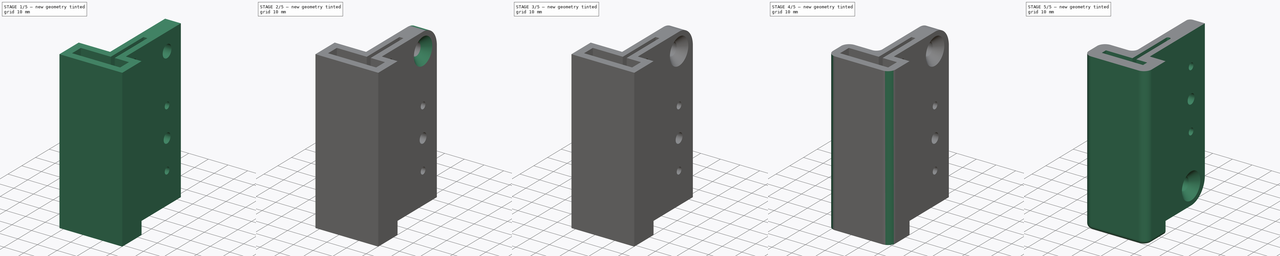
[diagram: build sequence overview — one tinted view per stage of 5, left to right]
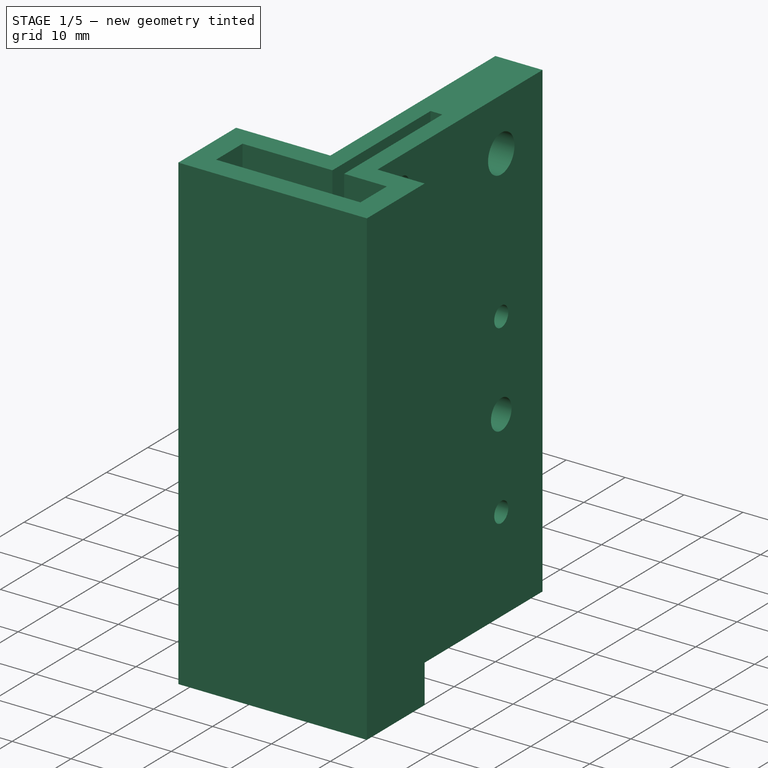
[diagram: stage 1 of 5 — iso view after this stage's code; geometry added in this stage tinted green]
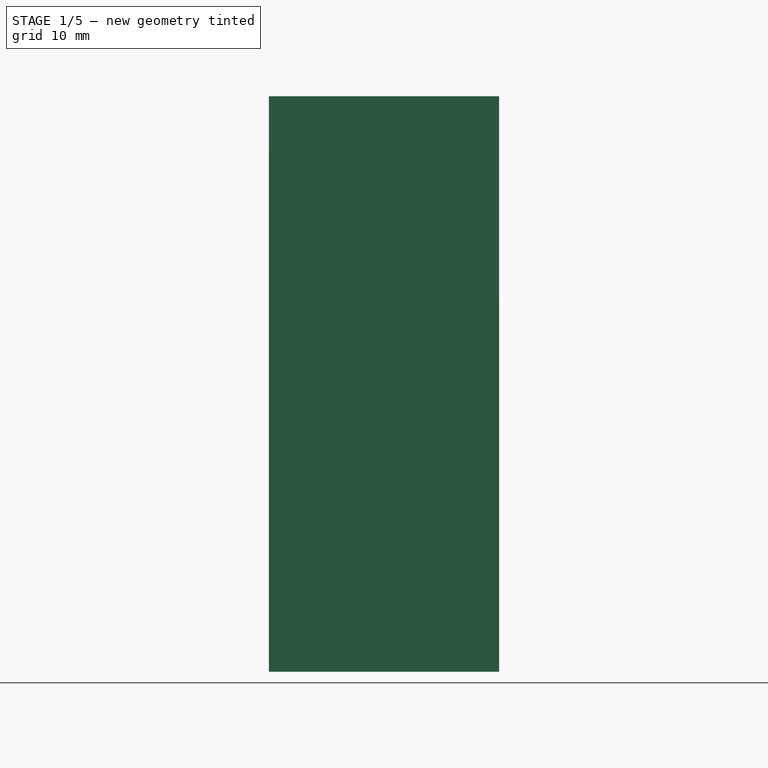
[diagram: stage 1 of 5 — front view after this stage's code; geometry added in this stage tinted green]
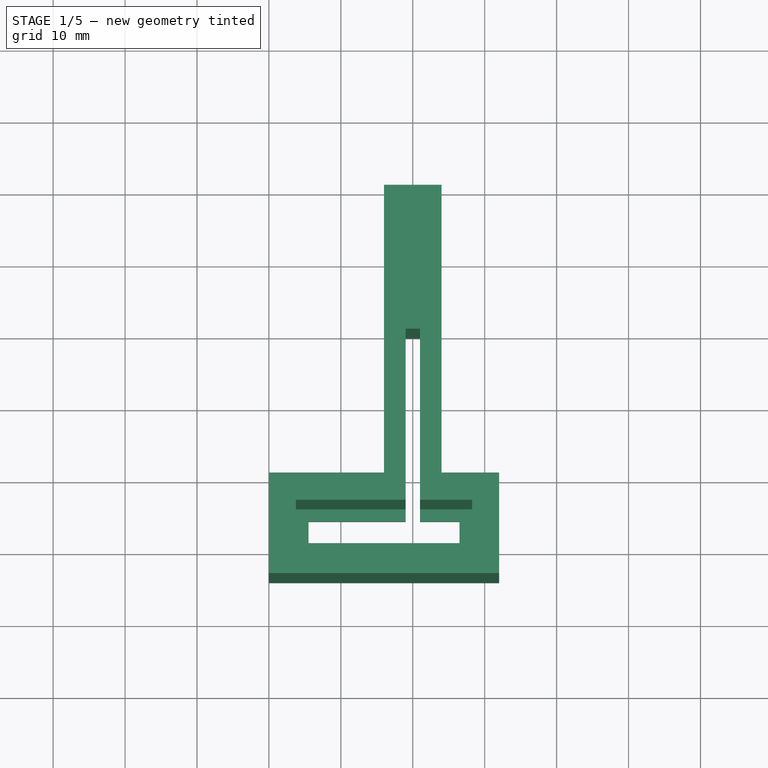
[diagram: stage 1 of 5 — top view after this stage's code; geometry added in this stage tinted green]
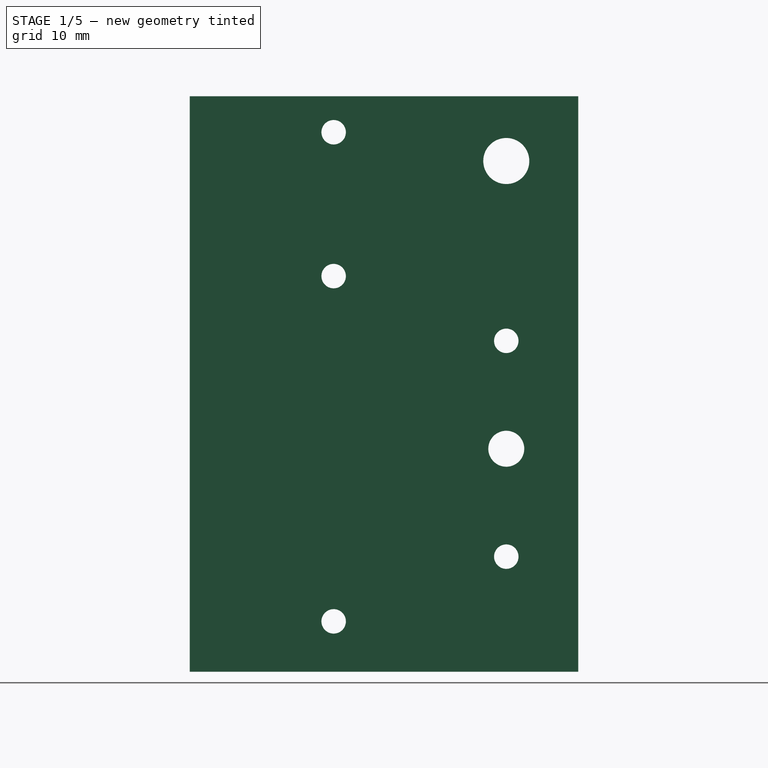
[diagram: stage 1 of 5 — right view after this stage's code; geometry added in this stage tinted green]
FCSTD DOCUMENT  (FreeCAD 0.16R6705 (Git))
Label: LowerKnee2
License: All rights reserved
LicenseURL: http://en.wikipedia.org/wiki/All_rights_reserved
objects: PartDesign::Fillet×8, PartDesign::Chamfer×6, Sketcher::SketchObject×4, PartDesign::Pocket×3, PartDesign::Pad×1, Part::Mirroring×1
note: 27 computed .brp shape members not serialized (recipe doc carries the construction recipe); baked Part::Feature solids carry a one-line shape summary decoded from their .brp

FEATURE [Sketcher::SketchObject] Sketch
  sketch-geometry (22):
    g0: LineSegment [constr] StartX=1 StartY=-3.9 StartZ=0 EndX=1 EndY=14 EndZ=0
    g1: LineSegment [constr] StartX=1 StartY=14 StartZ=0 EndX=-1 EndY=14 EndZ=0
    g2: LineSegment [constr] StartX=-1 StartY=14 StartZ=0 EndX=-1 EndY=-3.9 EndZ=0
    g3: LineSegment [constr] StartX=-1 StartY=-3.9 StartZ=0 EndX=-16.2 EndY=-3.9 EndZ=0
    g4: LineSegment [constr] StartX=-16.2 StartY=-3.9 StartZ=0 EndX=-16.2 EndY=-10.1 EndZ=0
    g5: LineSegment [constr] StartX=-16.2 StartY=-10.1 StartZ=0 EndX=8.2 EndY=-10.1 EndZ=0
    g6: LineSegment [constr] StartX=8.2 StartY=-10.1 StartZ=0 EndX=8.2 EndY=-3.9 EndZ=0
    g7: LineSegment [constr] StartX=8.2 StartY=-3.9 StartZ=0 EndX=1 EndY=-3.9 EndZ=0
    g8: LineSegment StartX=-4 StartY=0 StartZ=0 EndX=-4 EndY=40 EndZ=0
    g9: LineSegment StartX=4 StartY=18 StartZ=0 EndX=4 EndY=0 EndZ=0
    g10: LineSegment StartX=4 StartY=0 StartZ=0 EndX=12 EndY=0 EndZ=0
    g11: LineSegment StartX=12 StartY=0 StartZ=0 EndX=12 EndY=-14 EndZ=0
    g12: LineSegment StartX=12 StartY=-14 StartZ=0 EndX=-20 EndY=-14 EndZ=0
    g13: LineSegment StartX=-20 StartY=-14 StartZ=0 EndX=-20 EndY=0 EndZ=0
    g14: LineSegment StartX=-20 StartY=0 StartZ=0 EndX=-4 EndY=0 EndZ=0
    g15: LineSegment StartX=4 StartY=18 StartZ=0 EndX=4 EndY=40 EndZ=0
    g16: LineSegment StartX=4 StartY=40 StartZ=0 EndX=-4 EndY=40 EndZ=0
    g17: LineSegment [constr] StartX=-1 StartY=-3.9 StartZ=0 EndX=1 EndY=-3.9 EndZ=0
    g18: LineSegment [constr] StartX=4 StartY=0 StartZ=0 EndX=-4 EndY=0 EndZ=0
    g19: GeomPoint [constr] X=-4 Y=-7 Z=0
    g20: LineSegment [constr] StartX=-4 StartY=30 StartZ=0 EndX=4 EndY=30 EndZ=0
    g21: LineSegment [constr] StartX=-4 StartY=6 StartZ=0 EndX=4 EndY=6 EndZ=0
  constraints (67):
    c: Vertical(g0)
    c: Coincident(g0,g1)
    c: Horizontal(g1)
    c: Coincident(g1,g2)
    c: Vertical(g2)
    c: Coincident(g2,g3)
    c: Coincident(g3,g4)
    c: Vertical(g4)
    c: Coincident(g4,g5)
    c: Horizontal(g5)
    c: Coincident(g5,g6)
    c: Vertical(g6)
    c: Coincident(g6,g7)
    c: Coincident(g7,g0)
    c: Horizontal(g7)
    c: Horizontal(g3)
    c: Vertical(g8)
    c: Vertical(g9)
    c: Coincident(g9,g10)
    c: Horizontal(g10)
    c: Coincident(g10,g11)
    c: Vertical(g11)
    c: Coincident(g11,g12)
    c: Horizontal(g12)
    c: Coincident(g12,g13)
    c: Vertical(g13)
    c: Coincident(g13,g14)
    c: Horizontal(g14)
    c: Coincident(g8,g14)
    c: Vertical(g15)
    c: Coincident(g15,g16)
    c: Horizontal(g16)
    c: Coincident(g16,g8)
    c: Coincident(g17,g0)
    c: Horizontal(g17)
    c: Coincident(g18,g9)
    c: Coincident(g18,g8)
    c: Horizontal(g18)
    c: DistanceY(g11,g10) = 14
    c: DistanceX(g4,g5) = 24.4
    c: Coincident(g2,g17)
    c: Symmetric(g4,g6,g19)
    c: Symmetric(g12,g10,g19)
    c: DistanceY(g4,g3) = 6.2
    c: DistanceX(g2,g0) = 2
    c: DistanceX(g12,g11) = 32
    c: Symmetric(g2,g0,g-2)
    c: Symmetric(g8,g9,g-2)
    c: DistanceY(g0,g9) = 4
    c: DistanceX(g0,g9) = 3
    c: PointOnObject(g20,g8)
    c: Horizontal(g20)
    c: DistanceY(g8,g20) = 30
    c: PointOnObject(g13,g-1)
    c: DistanceY(g20,g8) = 10
    c: PointOnObject(g21,g8)
    c: Horizontal(g21)
    c: DistanceY(g8,g21) = 6
    c: DistanceY(g21,g1) = 8
    c: DistanceX(g8,g15) = 8
    c: PointOnObject(g20,g15)
    c: DistanceX(g13,g8) = 16
    c: PointOnObject(g21,g9)
    c: DistanceY(g9,g20) = 12
    c: DistanceX(g8,g9) = 8
    c: Coincident(g15,g9)
    c: DistanceX(g9,g10) = 8
FEATURE [PartDesign::Pad] Pad
  Length = 80
  Length2 = 100
  Sketch = -> Sketch
  Type = 0
FEATURE [Sketcher::SketchObject] Sketch001  label="RodHole"
  Placement = pos=(0,0,80) rot=(0,0,1;0rad)
  Support = -> Pad [Face9]
  sketch-geometry (22):
    g0: LineSegment StartX=1 StartY=-3.8 StartZ=0 EndX=1 EndY=20 EndZ=0
    g1: LineSegment StartX=1 StartY=20 StartZ=0 EndX=-1 EndY=20 EndZ=0
    g2: LineSegment StartX=-1 StartY=20 StartZ=0 EndX=-1 EndY=-3.8 EndZ=0
    g3: LineSegment StartX=-1 StartY=-3.8 StartZ=0 EndX=-16.25 EndY=-3.8 EndZ=0
    g4: LineSegment StartX=-16.25 StartY=-3.8 StartZ=0 EndX=-16.25 EndY=-10.2 EndZ=0
    g5: LineSegment StartX=-16.25 StartY=-10.2 StartZ=0 EndX=8.25 EndY=-10.2 EndZ=0
    g6: LineSegment StartX=8.25 StartY=-10.2 StartZ=0 EndX=8.25 EndY=-3.8 EndZ=0
    g7: LineSegment StartX=8.25 StartY=-3.8 StartZ=0 EndX=1 EndY=-3.8 EndZ=0
    g8: LineSegment [constr] StartX=-4 StartY=0 StartZ=0 EndX=-4 EndY=40 EndZ=0
    g9: LineSegment [constr] StartX=4 StartY=24 StartZ=0 EndX=4 EndY=0 EndZ=0
    g10: LineSegment [constr] StartX=4 StartY=0 StartZ=0 EndX=12 EndY=0 EndZ=0
    g11: LineSegment [constr] StartX=12 StartY=0 StartZ=0 EndX=12 EndY=-14 EndZ=0
    g12: LineSegment [constr] StartX=12 StartY=-14 StartZ=0 EndX=-20 EndY=-14 EndZ=0
    g13: LineSegment [constr] StartX=-20 StartY=-14 StartZ=0 EndX=-20 EndY=0 EndZ=0
    g14: LineSegment [constr] StartX=-20 StartY=0 StartZ=0 EndX=-4 EndY=0 EndZ=0
    g15: LineSegment [constr] StartX=4 StartY=24 StartZ=0 EndX=4 EndY=40 EndZ=0
    g16: LineSegment [constr] StartX=4 StartY=40 StartZ=0 EndX=-4 EndY=40 EndZ=0
    g17: LineSegment [constr] StartX=-1 StartY=-3.8 StartZ=0 EndX=1 EndY=-3.8 EndZ=0
    g18: LineSegment [constr] StartX=4 StartY=0 StartZ=0 EndX=-4 EndY=0 EndZ=0
    g19: GeomPoint [constr] X=-4 Y=-7 Z=0
    g20: LineSegment [constr] StartX=-4 StartY=30 StartZ=0 EndX=4 EndY=30 EndZ=0
    g21: LineSegment [constr] StartX=-4 StartY=6 StartZ=0 EndX=4 EndY=6 EndZ=0
  constraints (67):
    c: Vertical(g0)
    c: Coincident(g0,g1)
    c: Horizontal(g1)
    c: Coincident(g1,g2)
    c: Vertical(g2)
    c: Coincident(g2,g3)
    c: Coincident(g3,g4)
    c: Vertical(g4)
    c: Coincident(g4,g5)
    c: Horizontal(g5)
    c: Coincident(g5,g6)
    c: Vertical(g6)
    c: Coincident(g6,g7)
    c: Coincident(g7,g0)
    c: Horizontal(g7)
    c: Horizontal(g3)
    c: Vertical(g8)
    c: Vertical(g9)
    c: Coincident(g9,g10)
    c: Horizontal(g10)
    c: Coincident(g10,g11)
    c: Vertical(g11)
    c: Coincident(g11,g12)
    c: Horizontal(g12)
    c: Coincident(g12,g13)
    c: Vertical(g13)
    c: Coincident(g13,g14)
    c: Horizontal(g14)
    c: Coincident(g8,g14)
    c: Vertical(g15)
    c: Coincident(g15,g16)
    c: Horizontal(g16)
    c: Coincident(g16,g8)
    c: Coincident(g17,g0)
    c: Horizontal(g17)
    c: Coincident(g18,g9)
    c: Coincident(g18,g8)
    c: Horizontal(g18)
    c: DistanceY(g11,g10) = 14
    c: DistanceX(g4,g5) = 24.5
    c: Coincident(g2,g17)
    c: Symmetric(g4,g6,g19)
    c: Symmetric(g12,g10,g19)
    c: DistanceY(g4,g3) = 6.4
    c: DistanceX(g2,g0) = 2
    c: DistanceX(g12,g11) = 32
    c: Symmetric(g2,g0,g-2)
    c: Symmetric(g8,g9,g-2)
    c: DistanceY(g0,g9) = 4
    c: DistanceX(g0,g9) = 3
    c: PointOnObject(g20,g8)
    c: Horizontal(g20)
    c: DistanceY(g8,g20) = 30
    c: PointOnObject(g13,g-1)
    c: DistanceY(g20,g8) = 10
    c: PointOnObject(g21,g8)
    c: Horizontal(g21)
    c: DistanceY(g8,g21) = 6
    c: DistanceY(g21,g1) = 14
    c: DistanceX(g8,g15) = 8
    c: PointOnObject(g20,g15)
    c: DistanceY(g19,g-1) = 7
    c: DistanceX(g-1,g19) = -4
    c: DistanceX(g13,g8) = 16
    c: DistanceX(g9,g10) = 8
    c: Coincident(g15,g9)
    c: PointOnObject(g21,g9)
FEATURE [PartDesign::Pocket] Pocket
  Length = 76
  Sketch = -> Sketch001
  Type = 0
FEATURE [Sketcher::SketchObject] Sketch002  label="MountingHoles"
  Placement = pos=(-4,0,0) rot=(0.57735,-0.57735,-0.57735;2.0944rad)
  Support = -> Pocket [Face10]
  sketch-geometry (11):
    g0: LineSegment [constr] StartX=-6 StartY=80 StartZ=0 EndX=-6 EndY=0 EndZ=0
    g1: Circle CenterX=-6 CenterY=7 CenterZ=0 NormalX=0 NormalY=0 NormalZ=1 Radius=1.7
    g2: Circle CenterX=-6 CenterY=55 CenterZ=0 NormalX=0 NormalY=0 NormalZ=1 Radius=1.7
    g3: Circle CenterX=-6 CenterY=75 CenterZ=0 NormalX=0 NormalY=0 NormalZ=1 Radius=1.7
    g4: LineSegment [constr] StartX=0 StartY=31 StartZ=0 EndX=-30 EndY=31 EndZ=0
    g5: LineSegment [constr] StartX=-30 StartY=46 StartZ=0 EndX=-30 EndY=16 EndZ=0
    g6: Circle CenterX=-30 CenterY=46 CenterZ=0 NormalX=0 NormalY=0 NormalZ=1 Radius=1.7
    g7: Circle CenterX=-30 CenterY=16 CenterZ=0 NormalX=0 NormalY=0 NormalZ=1 Radius=1.7
    g8: LineSegment [constr] StartX=-30 StartY=46 StartZ=0 EndX=-30 EndY=71 EndZ=0
    g9: Circle CenterX=-30 CenterY=71 CenterZ=0 NormalX=0 NormalY=0 NormalZ=1 Radius=3.2
    g10: Circle CenterX=-30 CenterY=31 CenterZ=0 NormalX=0 NormalY=0 NormalZ=1 Radius=2.5
  constraints (33):
    c: PointOnObject(g0,g-1)
    c: Vertical(g0)
    c: DistanceX(g0,g-1) = 6
    c: DistanceY(g0,g0) = 80
    c: PointOnObject(g1,g0)
    c: PointOnObject(g2,g0)
    c: PointOnObject(g3,g0)
    c: Radius(g1) = 1.7
    c: Equal(g1,g2)
    c: Equal(g1,g3)
    c: DistanceY(g2,g3) = 20
    c: PointOnObject(g4,g-2)
    c: Horizontal(g4)
    c: Symmetric(g1,g2,g4)
    c: DistanceY(g1,g2) = 48
    c: DistanceY(g-1,g1) = 7
    c: DistanceX(g4,g4) = 30
    c: Vertical(g5)
    c: PointOnObject(g4,g5)
    c: DistanceY(g5,g5) = 30
    c: Symmetric(g5,g5,g4)
    c: Coincident(g6,g5)
    c: Coincident(g7,g5)
    c: Equal(g2,g6)
    c: Equal(g6,g7)
    c: Vertical(g8)
    c: Coincident(g9,g8)
    c: Coincident(g8,g5)
    c: DistanceY(g4,g8) = 40
    c: Radius(g9) = 3.2
    c: Coincident(g10,g4)
    c: Radius(g10) = 2.5
    c: DistanceY(g-1,g8) = 71
FEATURE [PartDesign::Pocket] Pocket001
  Length = 5
  Sketch = -> Sketch002
  Type = 1
FEATURE [Sketcher::SketchObject] Sketch003
  Placement = pos=(0,0,0) rot=(1,0,0;3.14159rad)
  Support = -> Pocket001 [Face4]
  sketch-geometry (10):
    g0: LineSegment StartX=-14.5 StartY=8.5 StartZ=0 EndX=6.5 EndY=8.5 EndZ=0
    g1: LineSegment StartX=6.5 StartY=8.5 StartZ=0 EndX=6.5 EndY=5.5 EndZ=0
    g2: LineSegment StartX=6.5 StartY=5.5 StartZ=0 EndX=1 EndY=5.5 EndZ=0
    g3: LineSegment StartX=-14.5 StartY=5.5 StartZ=0 EndX=-14.5 EndY=8.5 EndZ=0
    g4: GeomPoint [constr] X=-4 Y=7 Z=0
    g5: LineSegment [constr] StartX=-1 StartY=5.5 StartZ=0 EndX=1 EndY=5.5 EndZ=0
    g6: LineSegment StartX=1 StartY=5.5 StartZ=0 EndX=1 EndY=-20 EndZ=0
    g7: LineSegment StartX=1 StartY=-20 StartZ=0 EndX=-1 EndY=-20 EndZ=0
    g8: LineSegment StartX=-1 StartY=-20 StartZ=0 EndX=-1 EndY=5.5 EndZ=0
    g9: LineSegment StartX=-1 StartY=5.5 StartZ=0 EndX=-14.5 EndY=5.5 EndZ=0
  constraints (28):
    c: Coincident(g0,g1)
    c: Coincident(g1,g2)
    c: Coincident(g9,g3)
    c: Coincident(g3,g0)
    c: Horizontal(g0)
    c: Horizontal(g2)
    c: Vertical(g1)
    c: Vertical(g3)
    c: DistanceY(g1,g0) = 3
    c: DistanceX(g0,g0) = 21
    c: DistanceX(g-1,g4) = -4
    c: DistanceY(g-1,g4) = 7
    c: Symmetric(g9,g0,g4)
    c: Coincident(g5,g6)
    c: Coincident(g6,g7)
    c: Coincident(g7,g8)
    c: Coincident(g8,g5)
    c: Horizontal(g5)
    c: Horizontal(g7)
    c: Vertical(g6)
    c: Vertical(g8)
    c: PointOnObject(g2,g6)
    c: PointOnObject(g9,g8)
    c: Tangent(g2,g9)
    c: Coincident(g2,g5)
    c: Symmetric(g6,g7,g-2)
    c: DistanceX(g7,g6) = 2
    c: DistanceY(g6,g-1) = 20
FEATURE [PartDesign::Pocket] Pocket002
  Length = 5
  Sketch = -> Sketch003
  Type = 0
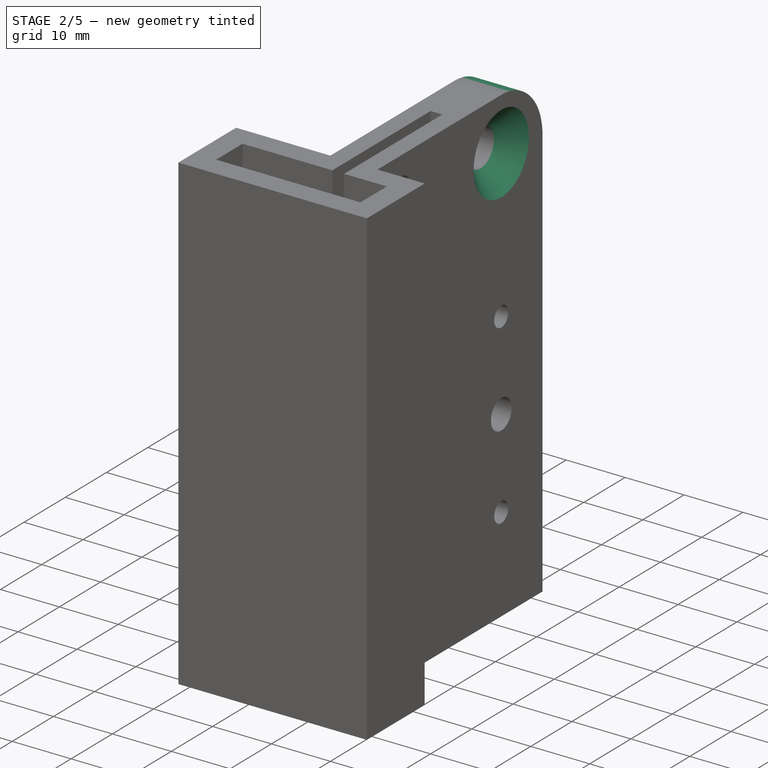
[diagram: stage 2 of 5 — iso view after this stage's code; geometry added in this stage tinted green]
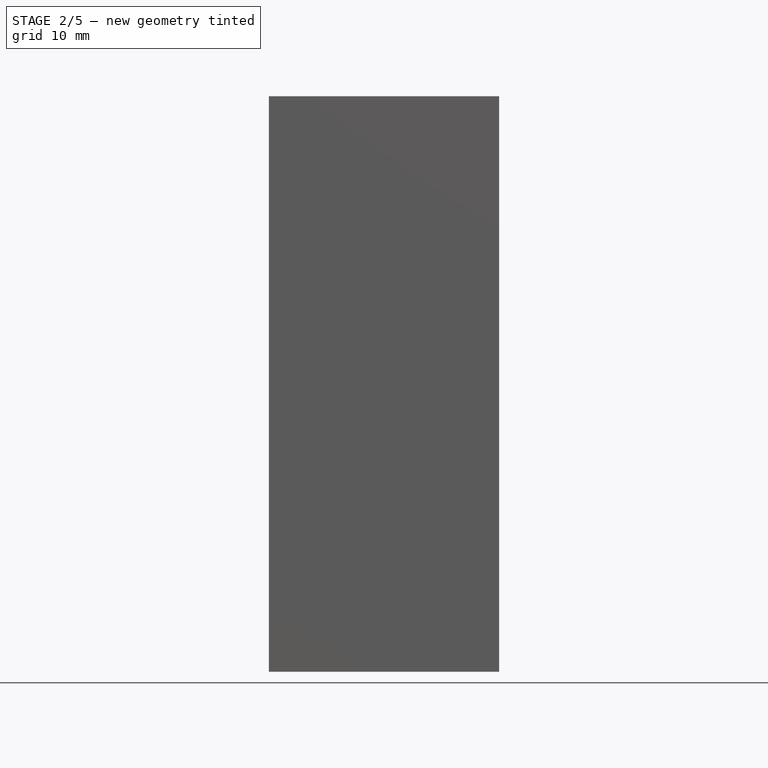
[diagram: stage 2 of 5 — front view after this stage's code; geometry added in this stage tinted green]
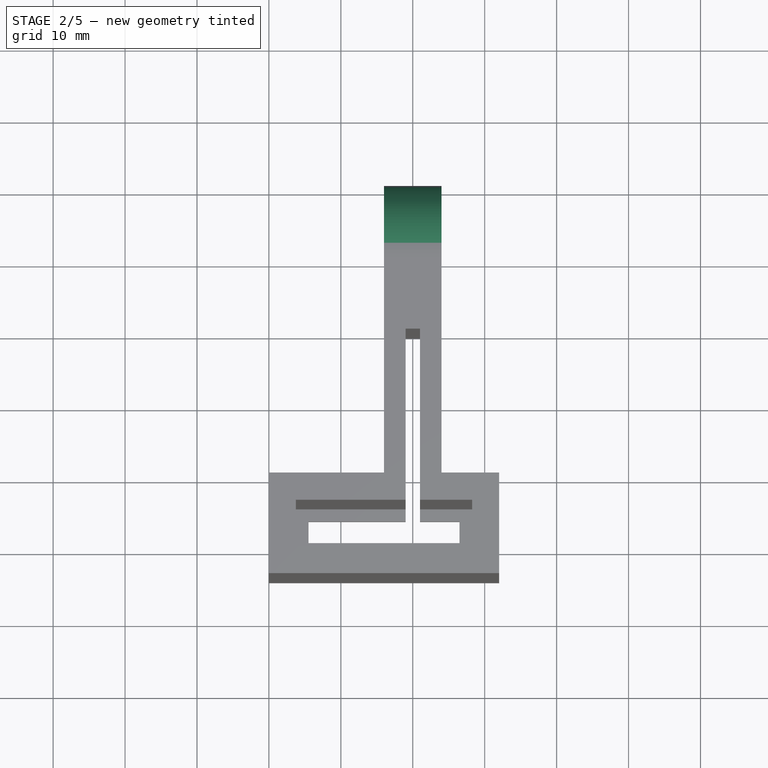
[diagram: stage 2 of 5 — top view after this stage's code; geometry added in this stage tinted green]
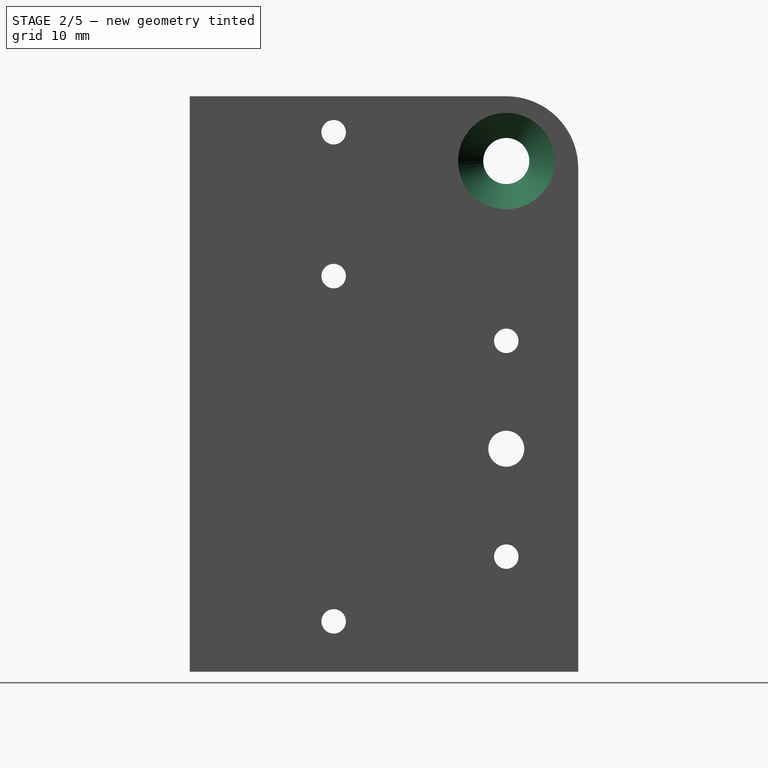
[diagram: stage 2 of 5 — right view after this stage's code; geometry added in this stage tinted green]
FEATURE [PartDesign::Chamfer] Chamfer
  Base = -> Pocket002 [Edge9]
  Size = 3.5
FEATURE [PartDesign::Fillet] Fillet
  Base = -> Chamfer [Edge31]
  Radius = 10
FEATURE [PartDesign::Chamfer] Chamfer001
  Base = -> Fillet [Edge65]
  Size = 1.8
FEATURE [PartDesign::Chamfer] Chamfer002
  Base = -> Chamfer001 [Edge7]
  Size = 1.8
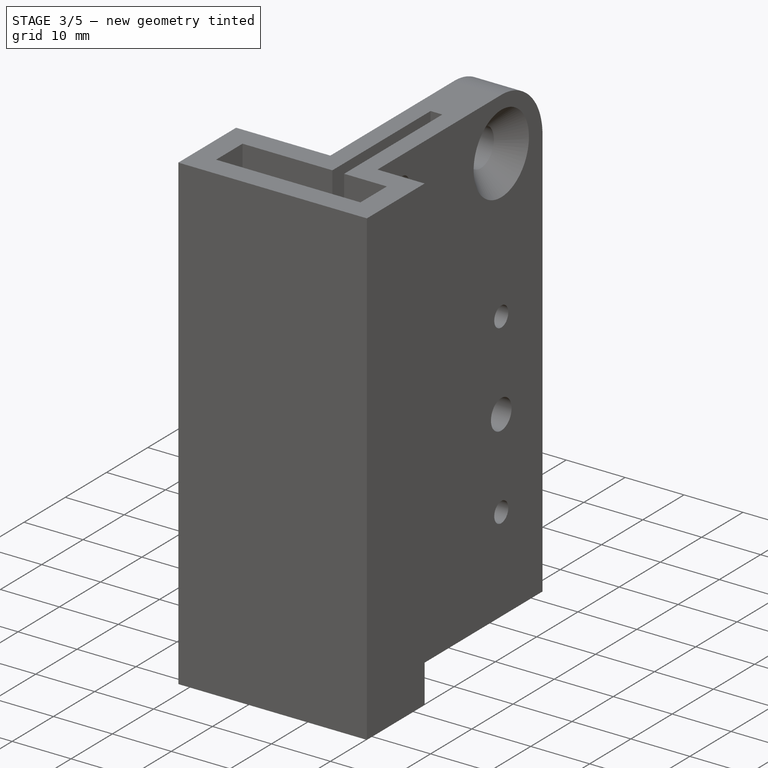
[diagram: stage 3 of 5 — iso view after this stage's code; geometry added in this stage tinted green]
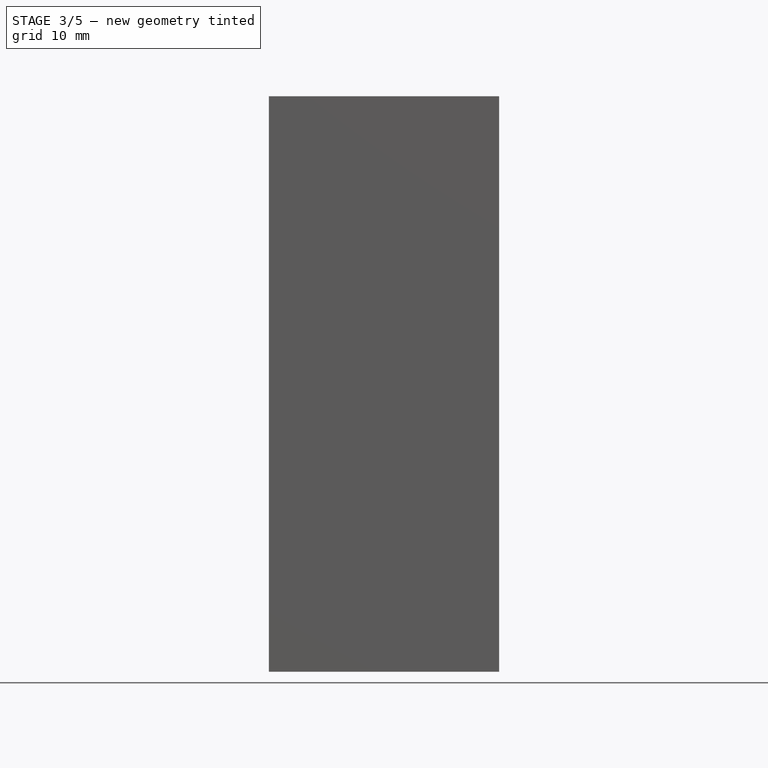
[diagram: stage 3 of 5 — front view after this stage's code; geometry added in this stage tinted green]
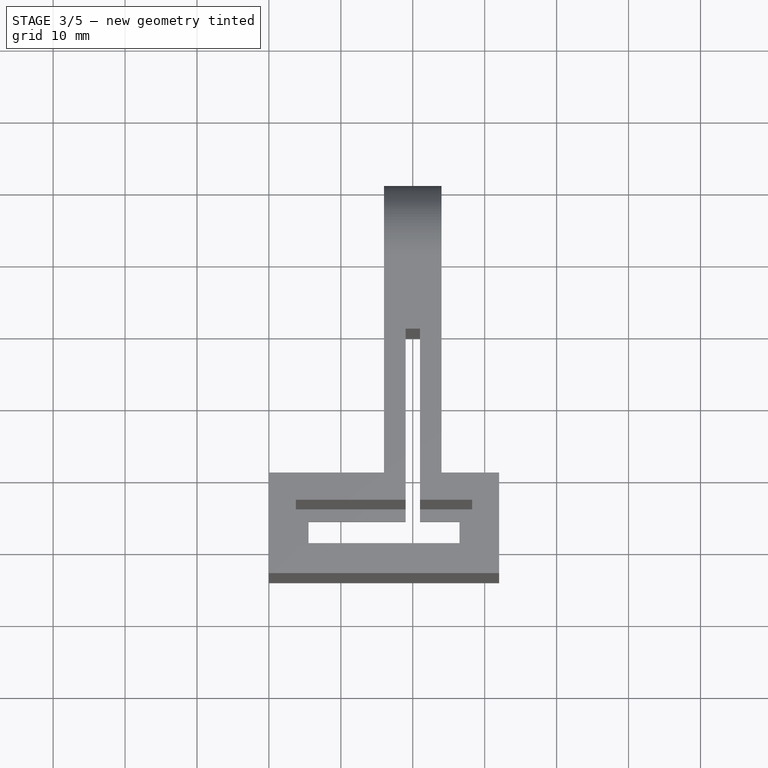
[diagram: stage 3 of 5 — top view after this stage's code; geometry added in this stage tinted green]
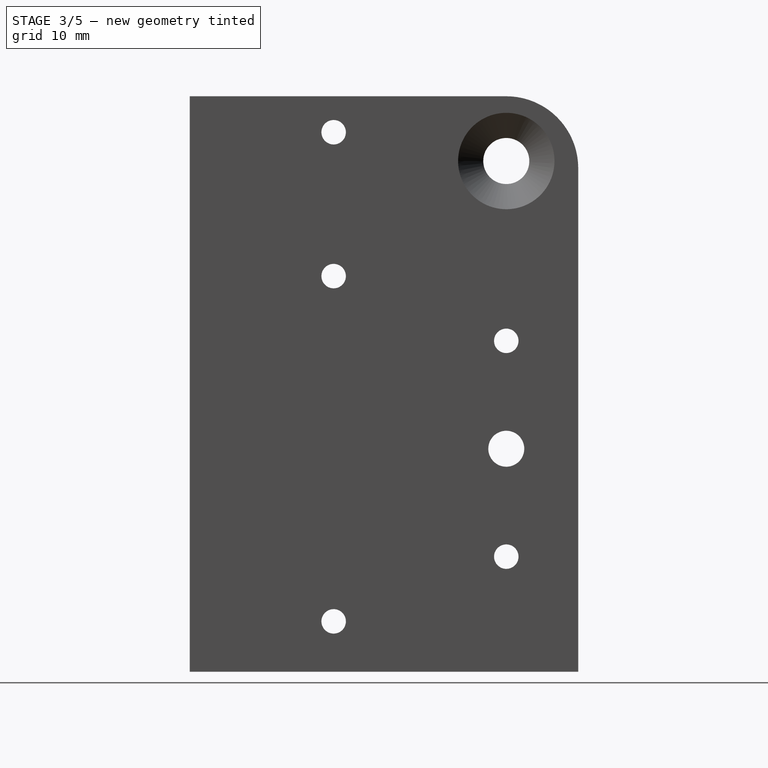
[diagram: stage 3 of 5 — right view after this stage's code; geometry added in this stage tinted green]
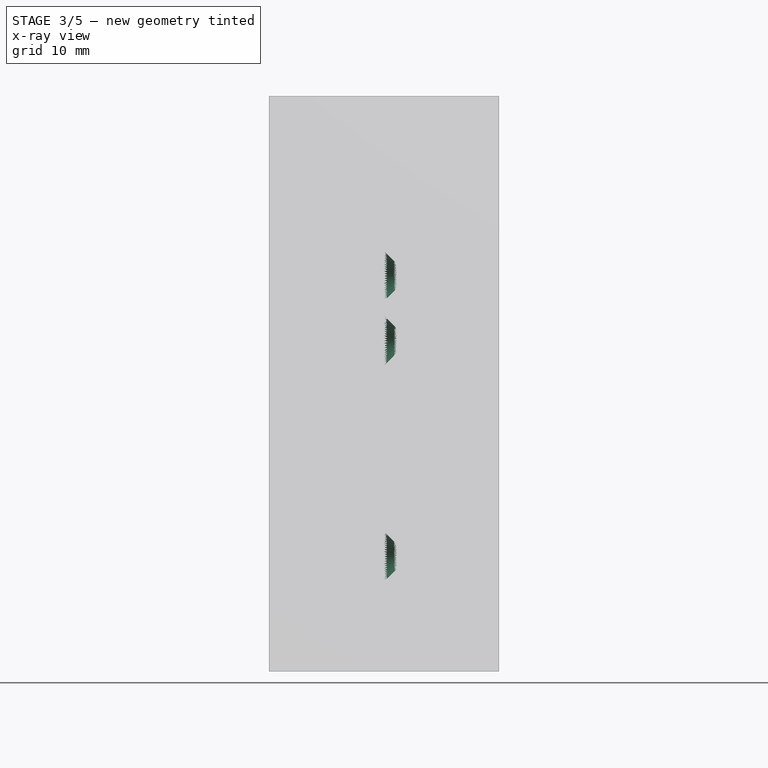
[diagram: stage 3 of 5 — x-ray composite at the front view; earlier geometry ghosted, this stage's added geometry solid]
FEATURE [PartDesign::Chamfer] Chamfer003
  Base = -> Chamfer002 [Edge8]
  Size = 1.8
FEATURE [PartDesign::Chamfer] Chamfer004
  Base = -> Chamfer003 [Edge9]
  Size = 1.8
FEATURE [PartDesign::Chamfer] Chamfer005
  Base = -> Chamfer004 [Edge11]
  Size = 1.8
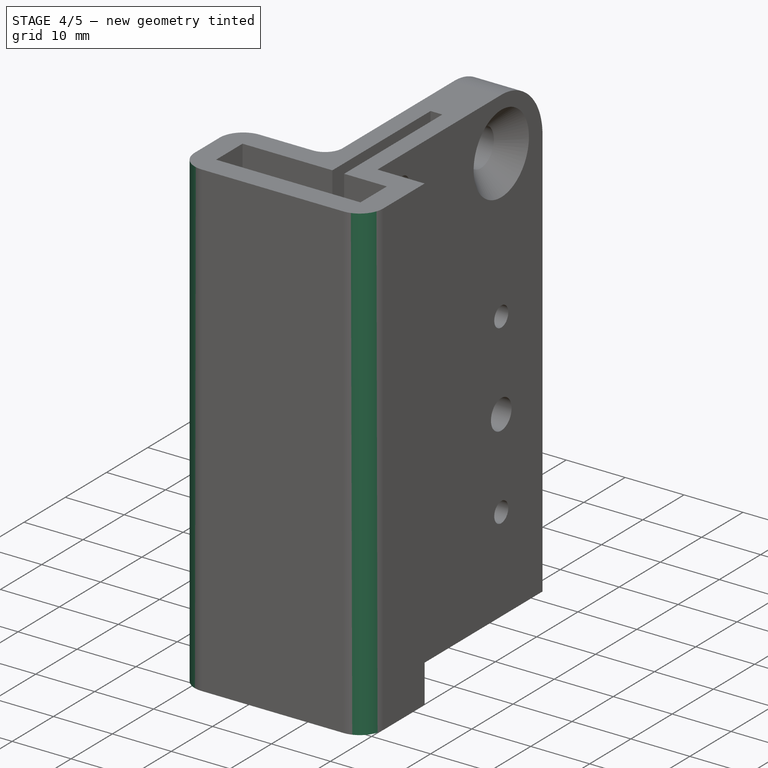
[diagram: stage 4 of 5 — iso view after this stage's code; geometry added in this stage tinted green]
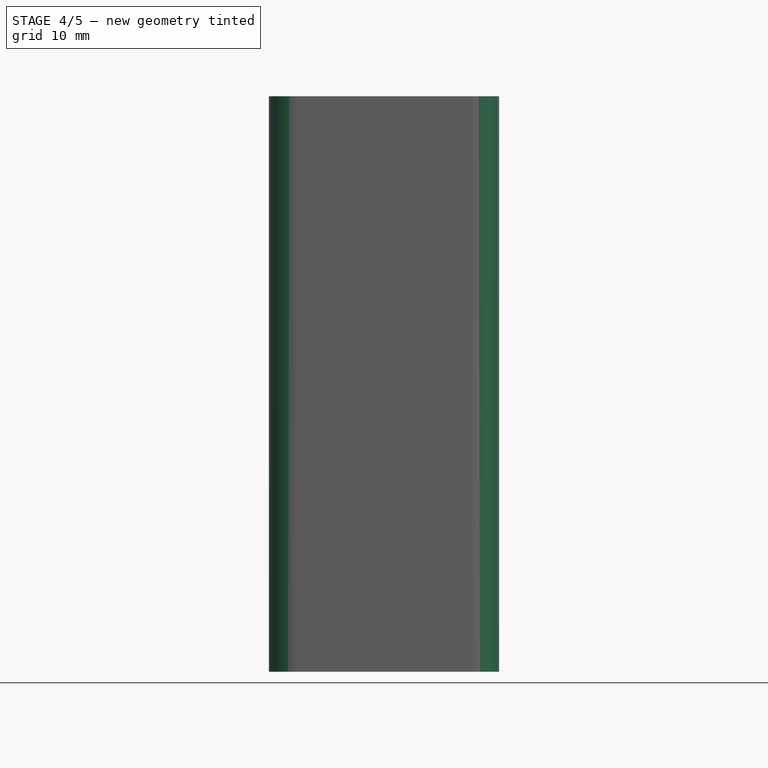
[diagram: stage 4 of 5 — front view after this stage's code; geometry added in this stage tinted green]
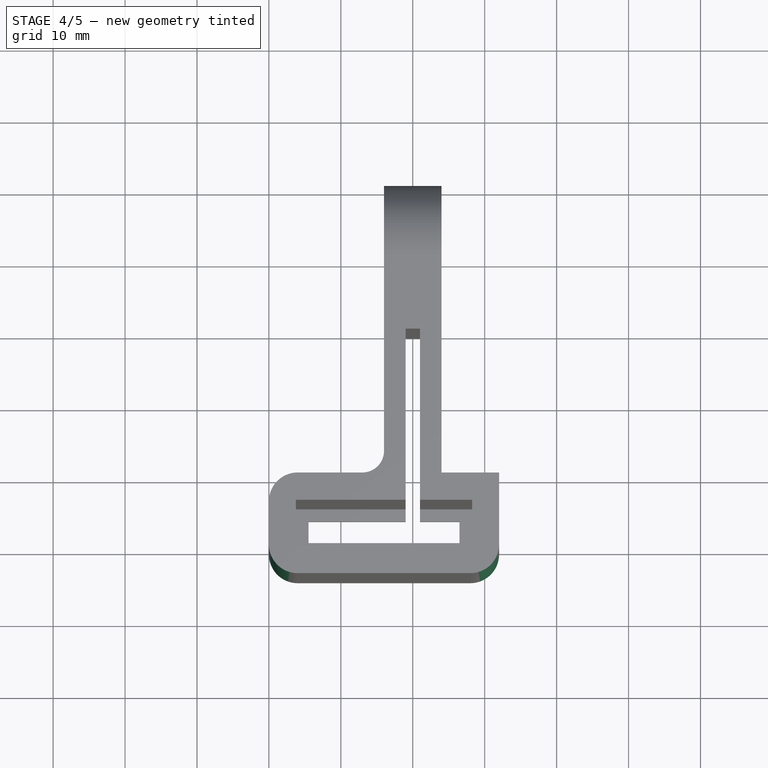
[diagram: stage 4 of 5 — top view after this stage's code; geometry added in this stage tinted green]
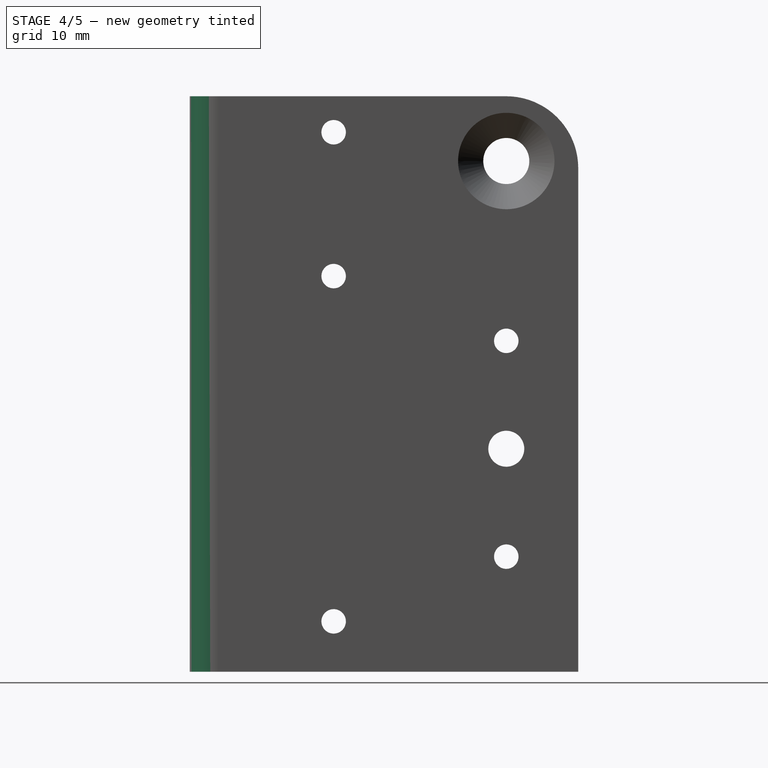
[diagram: stage 4 of 5 — right view after this stage's code; geometry added in this stage tinted green]
FEATURE [PartDesign::Fillet] Fillet001
  Base = -> Chamfer005 [Edge8]
  Radius = 3
FEATURE [PartDesign::Fillet] Fillet002
  Base = -> Fillet001 [Edge86]
  Radius = 4
FEATURE [PartDesign::Fillet] Fillet003
  Base = -> Fillet002 [Edge36]
  Radius = 4
FEATURE [PartDesign::Fillet] Fillet004
  Base = -> Fillet003 [Edge28]
  Radius = 4
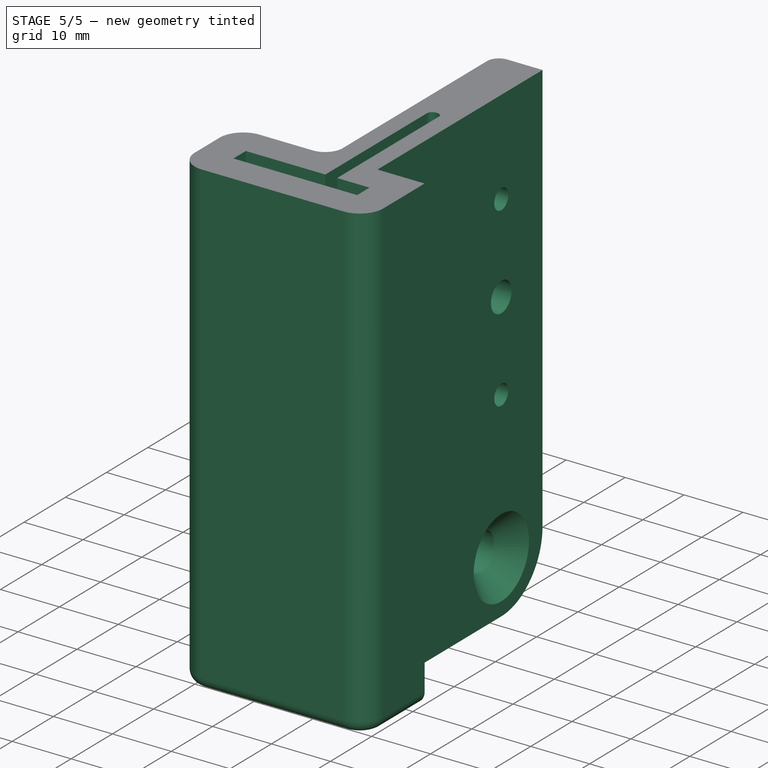
[diagram: stage 5 of 5 — iso view after this stage's code; geometry added in this stage tinted green]
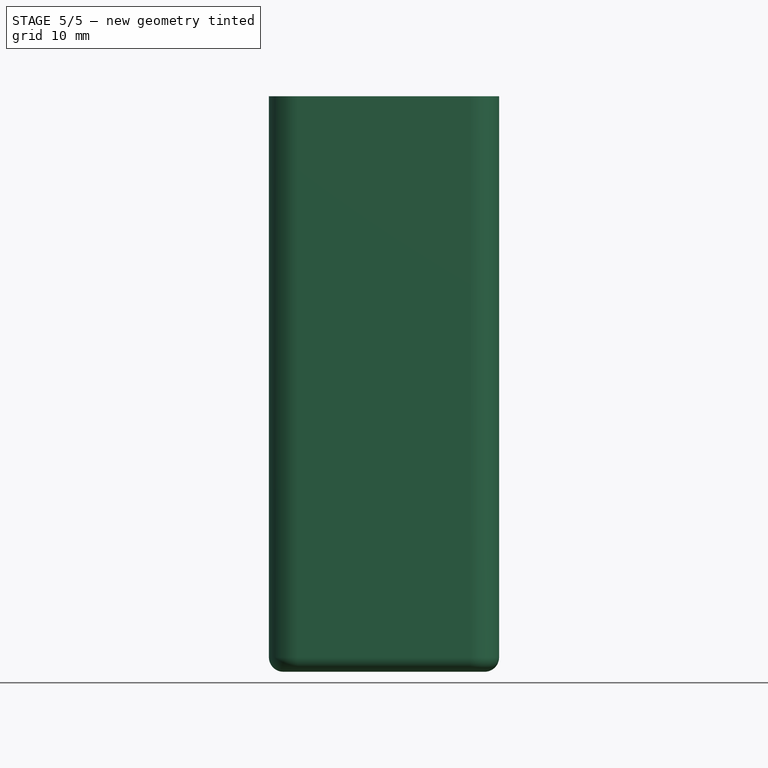
[diagram: stage 5 of 5 — front view after this stage's code; geometry added in this stage tinted green]
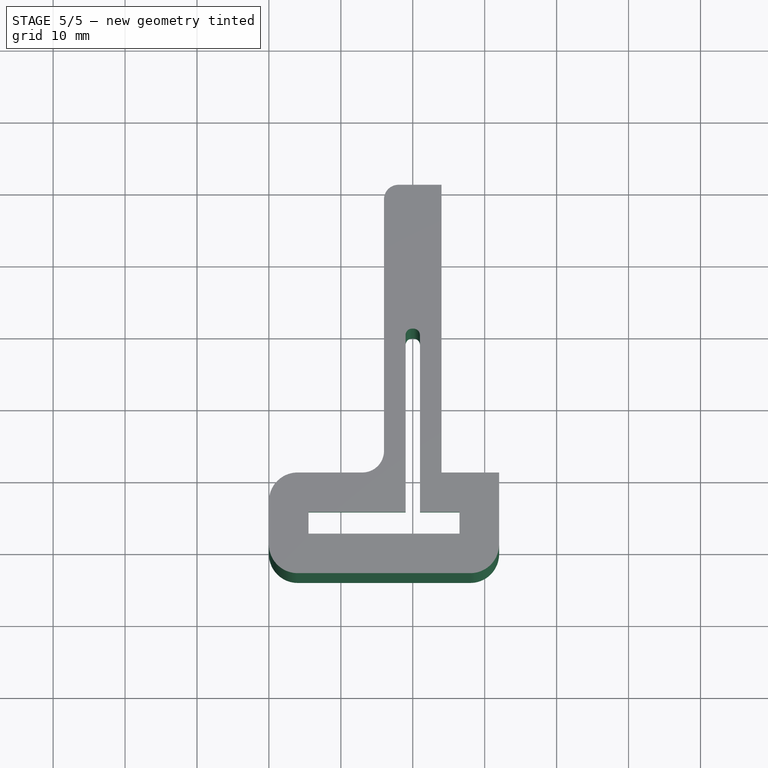
[diagram: stage 5 of 5 — top view after this stage's code; geometry added in this stage tinted green]
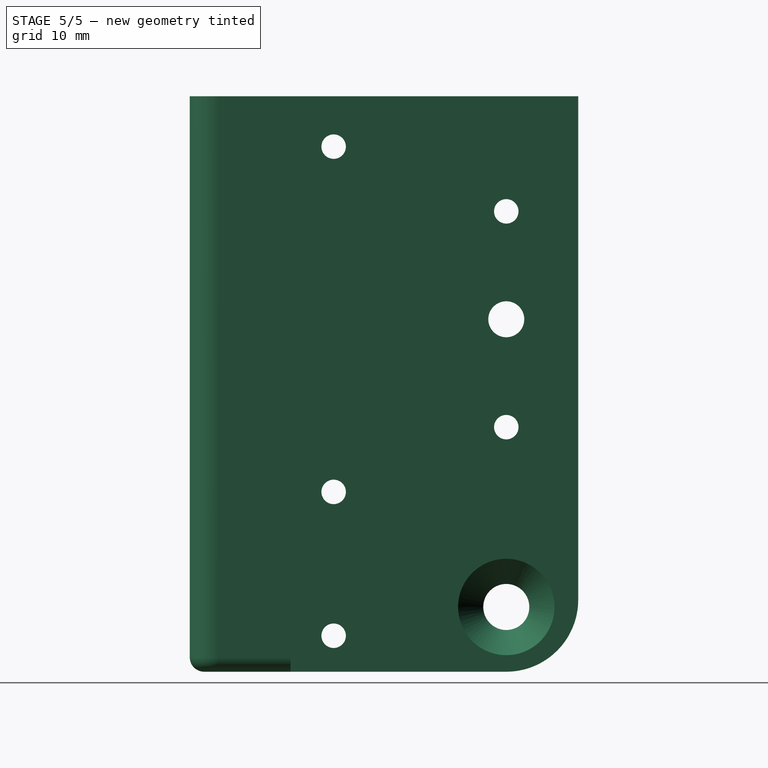
[diagram: stage 5 of 5 — right view after this stage's code; geometry added in this stage tinted green]
FEATURE [PartDesign::Fillet] Fillet005
  Base = -> Fillet004 [Edge68]
  Radius = 2
FEATURE [PartDesign::Fillet] Fillet006
  Base = -> Fillet005 [Edge65]
  Radius = 0.9
FEATURE [PartDesign::Fillet] Fillet007
  Base = -> Fillet006 [Edge37]
  Radius = 0.9
FEATURE [Part::Mirroring] Part__Mirroring  label="Fillet007 (Mirror #1)"
  Base = (0,0,0)
  Normal = (0,0,1)
  Source = -> Fillet007
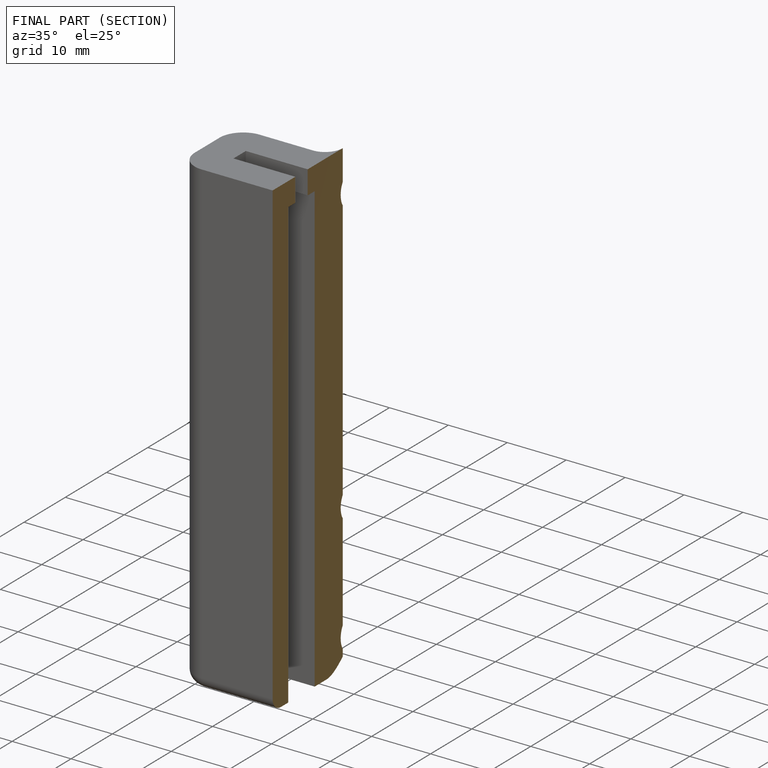
[diagram: finished part — half-section view (interior)]
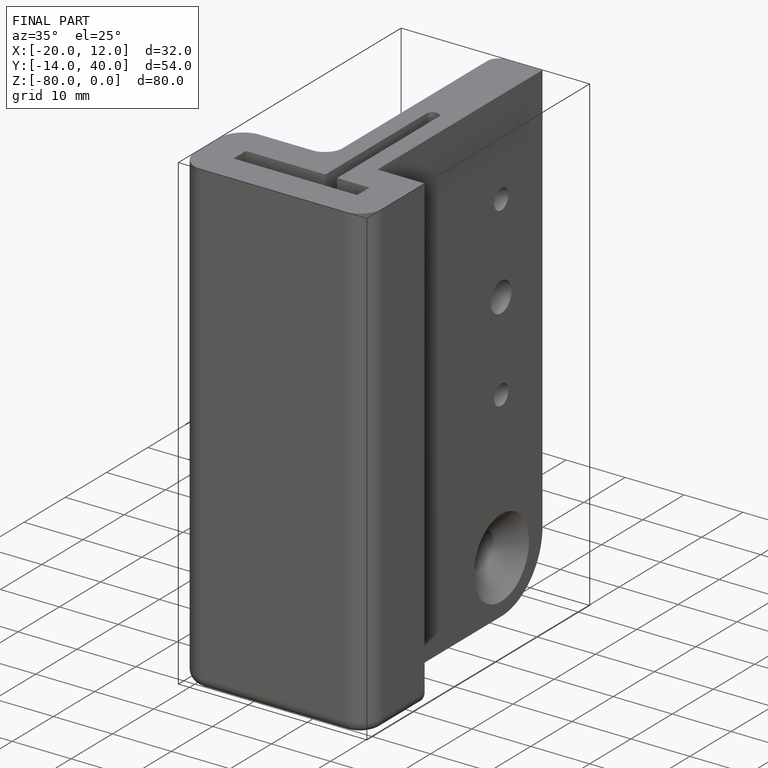
[diagram: finished part — iso view with bounding-box wireframe]
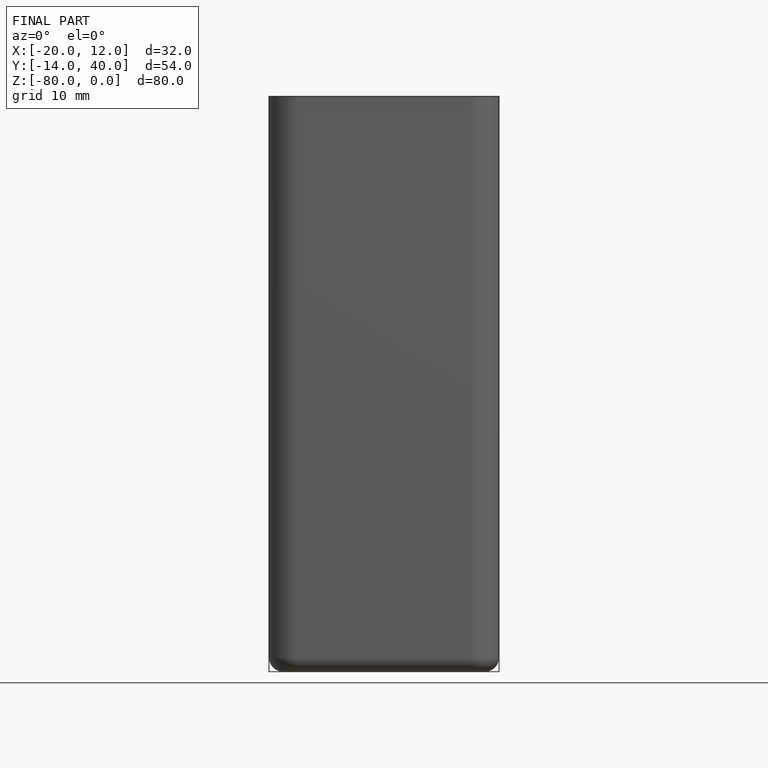
[diagram: finished part — front view with bounding-box wireframe]
